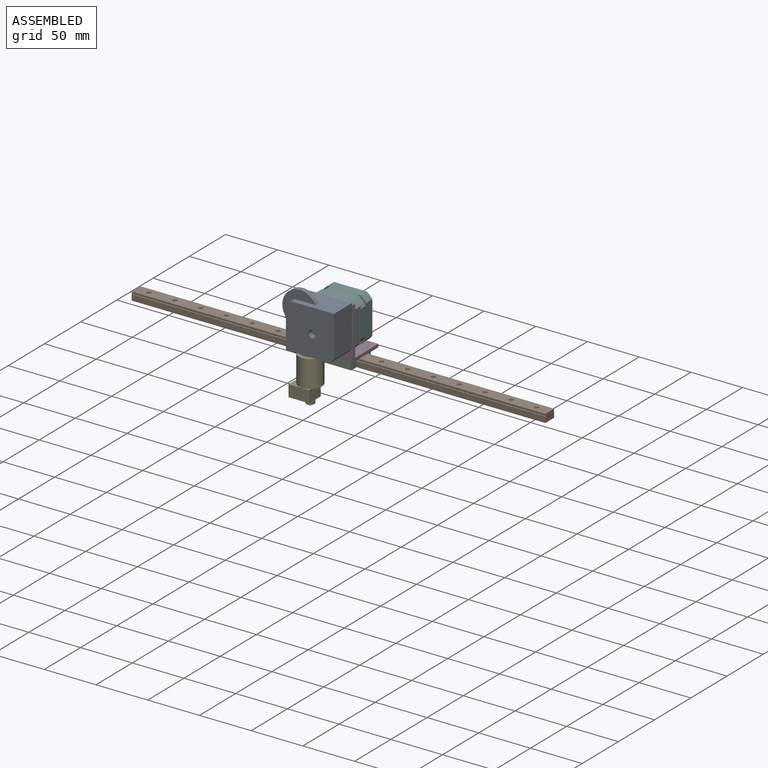
[diagram: assembled view]
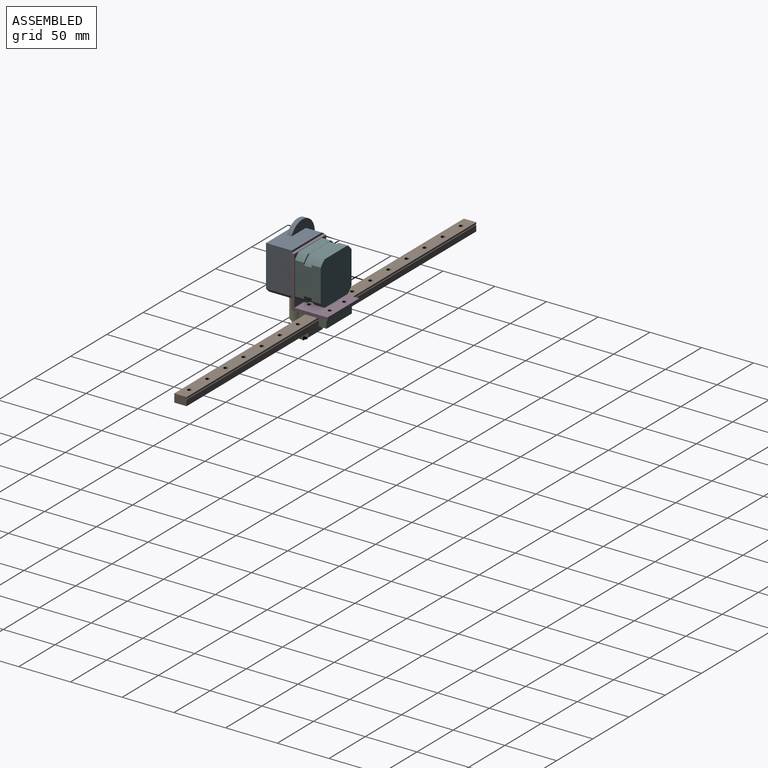
[diagram: assembled view, second angle]
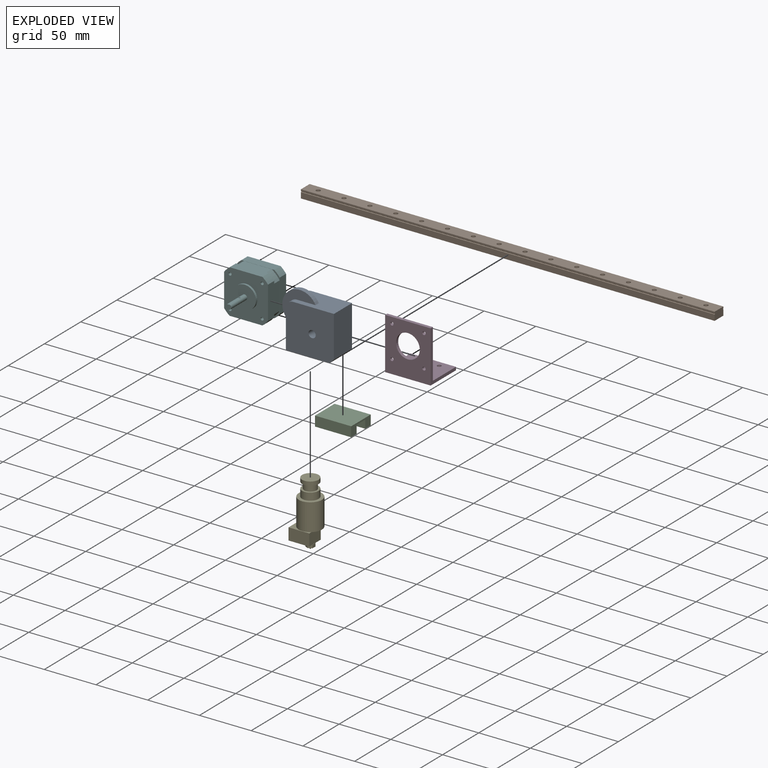
[diagram: exploded view]
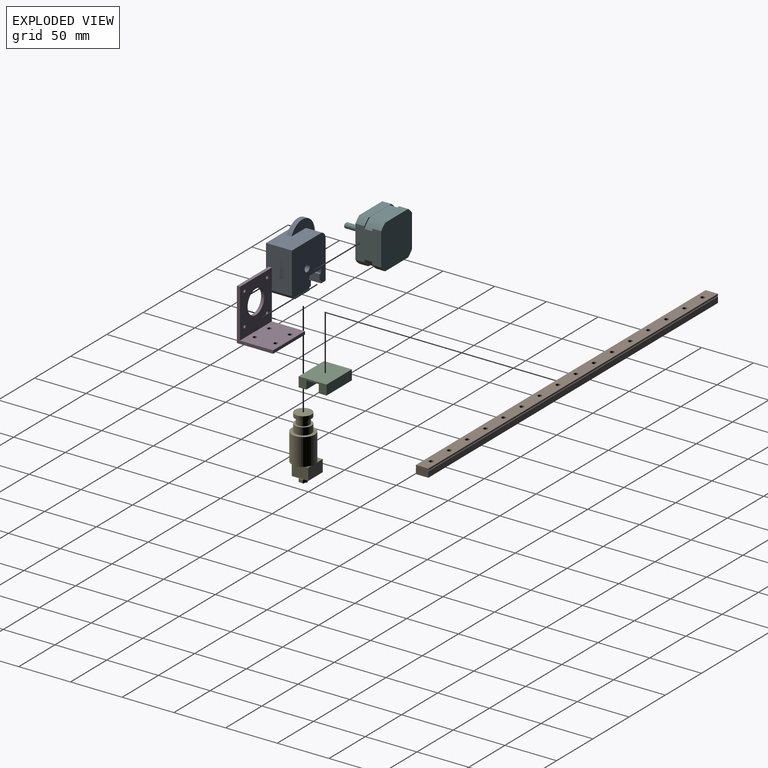
[diagram: exploded view, second angle]
ASSEMBLY  parts=6 mates=5
PART A: 25 faces, bbox 53.5x25x53.3 mm
  f0: plane 11.57x5.9mm, normal (1,0,0), area 68.3mm2, adj f2,f3,f4,f17
  f1: plane 42.5x25mm, normal (0,0,-1), area 776.9mm2, adj f2,f5,f8,f9,f18,f21,f22
  f2: plane 46.5x44mm, normal (0,1,0), area 1808.6mm2, adj f0,f1,f4,f7,f8,f10,f11,f15
  f3: cylinder r=6mm len=12mm, axis (0,0,-1), area 111.2mm2, adj f0,f4,f17,f20
  f4: plane 19.57x16mm, normal (0,0,-1), area 90.2mm2, adj f0,f2,f3,f5,f18,f20,f21
  f5: cylinder r=8mm len=16mm, axis (0,0,-1), area 75.4mm2, adj f1,f4,f18,f21
  f6: cylinder r=7mm len=7mm, axis (0,1,0), area 56.4mm2, adj f7,f8,f9,f14
  f7: plane 39.5x25mm, normal (0,0,1), area 905.9mm2, adj f2,f6,f9,f10,f11,f12,f13,f14
  f8: plane 37x25mm, normal (-1,0,0), area 859.9mm2, adj f1,f2,f6,f9,f11,f12,f13,f14
  f9: plane 46.5x44mm, normal (0,-1,0), area 1989mm2, adj f1,f6,f7,f8,f10,f22,f24
  f10: plane 40x25mm, normal (1,0,0), area 1000mm2, adj f2,f7,f9,f22
  f11: cylinder r=7mm len=15.37mm, axis (0,1,0), area 169mm2, adj f2,f7,f8,f13
  f12: cylinder r=17mm len=32.15mm, axis (0,-1,0), area 276.4mm2, adj f7,f8,f13,f14
  f13: plane 32.15x30.76mm, normal (0,1,0), area 328.5mm2, adj f7,f8,f11,f12
  f14: plane 32.15x30.76mm, normal (0,-1,0), area 328.5mm2, adj f6,f7,f8,f12
  f15: plane 19.67x16.2mm, normal (0,0,-1), area 290.5mm2, adj f2,f16,f19,f23
  f16: cylinder r=8.1mm len=16.2mm, axis (0,0,-1), area 96.7mm2, adj f15,f17,f19,f23
  f17: plane 19.67x16.2mm, normal (0,0,1), area 95.1mm2, adj f0,f2,f3,f16,f19,f20,f23
  f18: plane 11.57x3mm, normal (1,0,0), area 34.7mm2, adj f1,f2,f4,f5
  f19: plane 11.57x3.8mm, normal (1,0,0), area 44mm2, adj f2,f15,f16,f17
  f20: plane 11.57x5.9mm, normal (-1,0,0), area 68.3mm2, adj f2,f3,f4,f17
  f21: plane 11.57x3mm, normal (-1,0,0), area 34.7mm2, adj f1,f2,f4,f5
  f22: plane 25x4mm, normal (0.71,0,-0.71), area 141.4mm2, adj f1,f2,f9,f10
  f23: plane 11.57x3.8mm, normal (-1,0,0), area 44mm2, adj f2,f15,f16,f17
  f24: cylinder r=3.5mm len=25mm, axis (0,-1,0), area 549.8mm2, adj f2,f9
PART B: 28 faces, bbox 12x400x8 mm
  f0: plane 400x12mm, normal (0,0,1), area 4598.9mm2, adj f1,f9,f10,f11,f12,f13,f14,f15
  f1: plane 400x1.5mm, normal (-1,0,0), area 600mm2, adj f0,f2,f10,f11
  f2: plane 400x0.5mm, normal (-0.71,0,-0.71), area 282.8mm2, adj f1,f3,f10,f11
  f3: plane 400x0.5mm, normal (-0.71,0,0.71), area 282.8mm2, adj f2,f4,f10,f11
  f4: plane 400x5.5mm, normal (-1,0,0), area 2200mm2, adj f3,f5,f10,f11
  f5: plane 400x12mm, normal (0,0,-1), area 4598.9mm2, adj f4,f6,f10,f11,f12,f13,f14,f15
  f6: plane 400x5.5mm, normal (1,0,0), area 2200mm2, adj f5,f7,f10,f11
  f7: plane 400x0.5mm, normal (0.71,0,0.71), area 282.8mm2, adj f6,f8,f10,f11
  f8: plane 400x0.5mm, normal (0.71,0,-0.71), area 282.8mm2, adj f7,f9,f10,f11
  f9: plane 400x1.5mm, normal (1,0,0), area 600mm2, adj f0,f8,f10,f11
  f10: plane 12x8mm, normal (0,-1,0), area 95.5mm2, adj f0,f1,f2,f3,f4,f5,f6,f7
  f11: plane 12x8mm, normal (0,1,0), area 95.5mm2, adj f0,f1,f2,f3,f4,f5,f6,f7
  f12: cylinder r=2mm len=8mm, axis (0,0,1), area 100.5mm2, adj f0,f5
  f13: cylinder r=2mm len=8mm, axis (0,0,1), area 100.5mm2, adj f0,f5
  f14: cylinder r=2mm len=8mm, axis (0,0,1), area 100.5mm2, adj f0,f5
  f15: cylinder r=2mm len=8mm, axis (0,0,1), area 100.5mm2, adj f0,f5
  f16: cylinder r=2mm len=8mm, axis (0,0,1), area 100.5mm2, adj f0,f5
  f17: cylinder r=2mm len=8mm, axis (0,0,1), area 100.5mm2, adj f0,f5
  f18: cylinder r=2mm len=8mm, axis (0,0,1), area 100.5mm2, adj f0,f5
  f19: cylinder r=2mm len=8mm, axis (0,0,1), area 100.5mm2, adj f0,f5
  f20: cylinder r=2mm len=8mm, axis (0,0,1), area 100.5mm2, adj f0,f5
  f21: cylinder r=2mm len=8mm, axis (0,0,1), area 100.5mm2, adj f0,f5
  f22: cylinder r=2mm len=8mm, axis (0,0,1), area 100.5mm2, adj f0,f5
  f23: cylinder r=2mm len=8mm, axis (0,0,1), area 100.5mm2, adj f0,f5
  f24: cylinder r=2mm len=8mm, axis (0,0,1), area 100.5mm2, adj f0,f5
  f25: cylinder r=2mm len=8mm, axis (0,0,1), area 100.5mm2, adj f0,f5
  f26: cylinder r=2mm len=8mm, axis (0,0,1), area 100.5mm2, adj f0,f5
  f27: cylinder r=2mm len=8mm, axis (0,0,1), area 100.5mm2, adj f0,f5
PART C: 10 faces, bbox 27x35x9.6 mm
  f0: plane 35x7.5mm, normal (0,0,-1), area 262.5mm2, adj f1,f7,f8,f9
  f1: plane 35x8mm, normal (1,0,0), area 280mm2, adj f0,f2,f8,f9
  f2: plane 35x12mm, normal (0,0,-1), area 420mm2, adj f1,f3,f8,f9
  f3: plane 35x8mm, normal (-1,0,0), area 280mm2, adj f2,f4,f8,f9
  f4: plane 35x7.5mm, normal (0,0,-1), area 262.5mm2, adj f3,f5,f8,f9
  f5: plane 35x9.6mm, normal (1,0,0), area 336mm2, adj f4,f6,f8,f9
  f6: plane 35x27mm, normal (0,0,1), area 945mm2, adj f5,f7,f8,f9
  f7: plane 35x9.6mm, normal (-1,0,0), area 336mm2, adj f0,f6,f8,f9
  f8: plane 27x9.6mm, normal (0,-1,0), area 163.2mm2, adj f0,f1,f2,f3,f4,f5,f6,f7
  f9: plane 27x9.6mm, normal (0,1,0), area 163.2mm2, adj f0,f1,f2,f3,f4,f5,f6,f7
PART D: 17 faces, bbox 44x35x50 mm
  f0: plane 50x35mm, normal (-1,0,0), area 246mm2, adj f1,f3,f4,f5,f10,f12
  f1: plane 44x35mm, normal (0,0,-1), area 1494.6mm2, adj f0,f2,f4,f5,f13,f14,f15,f16
  f2: plane 50x35mm, normal (1,0,0), area 246mm2, adj f1,f3,f4,f5,f10,f12
  f3: plane 44x32mm, normal (0,0,1), area 1362.6mm2, adj f0,f2,f4,f12,f13,f14,f15,f16
  f4: plane 44x3mm, normal (0,-1,0), area 132mm2, adj f0,f1,f2,f3
  f5: plane 50x44mm, normal (0,1,0), area 1752.4mm2, adj f0,f1,f2,f6,f7,f8,f9,f10
  f6: cylinder r=1.6mm len=3.2mm, axis (0,1,0), area 30.2mm2, adj f5,f12
  f7: cylinder r=1.6mm len=3.2mm, axis (0,1,0), area 30.2mm2, adj f5,f12
  f8: cylinder r=1.6mm len=3.2mm, axis (0,1,0), area 30.2mm2, adj f5,f12
  f9: cylinder r=1.6mm len=3.2mm, axis (0,1,0), area 30.2mm2, adj f5,f12
  f10: plane 44x3mm, normal (0,0,1), area 132mm2, adj f0,f2,f5,f12
  f11: cylinder r=11.5mm len=23mm, axis (0,1,0), area 216.8mm2, adj f5,f12
  f12: plane 47x44mm, normal (0,-1,0), area 1620.4mm2, adj f0,f2,f3,f6,f7,f8,f9,f10
  f13: cylinder r=1.9mm len=3.8mm, axis (0,0,1), area 35.8mm2, adj f1,f3
  f14: cylinder r=1.9mm len=3.8mm, axis (0,0,1), area 35.8mm2, adj f1,f3
  f15: cylinder r=1.9mm len=3.8mm, axis (0,0,1), area 35.8mm2, adj f1,f3
  f16: cylinder r=1.9mm len=3.8mm, axis (0,0,1), area 35.8mm2, adj f1,f3
PART E: 27 faces, bbox 26.7x22.3x62.3 mm
  f0: plane 22.3x22.3mm, normal (0,0,1), area 189.5mm2, adj f1,f10
  f1: cylinder r=11.15mm len=26mm, axis (0,0,-1), area 1821.5mm2, adj f0,f4
  f2: plane 20x16mm, normal (0,0,1), area 313.8mm2, adj f3,f11,f12,f13,f14
  f3: cylinder r=1.4mm len=2.8mm, axis (0,0,-1), area 18.5mm2, adj f2,f4
  f4: plane 22.3x22.3mm, normal (0,0,-1), area 384.4mm2, adj f1,f3
  f5: plane 16x16mm, normal (0,0,1), area 201.1mm2, adj f6
  f6: cylinder r=8mm len=16mm, axis (0,0,-1), area 186mm2, adj f5,f7
  f7: plane 16x16mm, normal (0,0,-1), area 88mm2, adj f6,f8
  f8: cylinder r=6mm len=12mm, axis (0,0,-1), area 226.2mm2, adj f7,f9
  f9: plane 16x16mm, normal (0,0,1), area 88mm2, adj f8,f10
  f10: cylinder r=8mm len=16mm, axis (0,0,-1), area 351.9mm2, adj f0,f9
  f11: plane 20x11.5mm, normal (0,-1,0), area 230mm2, adj f2,f12,f14,f26
  f12: plane 16x11.5mm, normal (1,0,0), area 184mm2, adj f2,f11,f13,f26
  f13: plane 20x11.5mm, normal (0,1,0), area 230mm2, adj f2,f12,f14,f26
  f14: plane 16x11.5mm, normal (-1,0,0), area 184mm2, adj f2,f11,f13,f26
  f15: plane 1x1mm, normal (0,0,-1), area 0.8mm2, adj f16
  f16: cone r=1.9mm half-angle=35deg, axis (0,0,1), area 18.4mm2, adj f15,f17
  f17: plane 8.08x7mm, normal (0,0,-1), area 31.1mm2, adj f16,f18,f19,f20,f21,f22,f23
  f18: plane 3.5x3mm, normal (-0.5,0.87,0), area 12.1mm2, adj f17,f19,f23,f24
  f19: plane 3.5x3mm, normal (0.5,0.87,0), area 12.1mm2, adj f17,f18,f20,f24
  f20: plane 4.04x3mm, normal (1,0,0), area 12.1mm2, adj f17,f19,f21,f24
  f21: plane 3.5x3mm, normal (0.5,-0.87,0), area 12.1mm2, adj f17,f20,f22,f24
  f22: plane 3.5x3mm, normal (-0.5,-0.87,0), area 12.1mm2, adj f17,f21,f23,f24
  f23: plane 4.04x3mm, normal (-1,0,0), area 12.1mm2, adj f17,f18,f22,f24
  f24: plane 8.08x7mm, normal (0,0,1), area 22.8mm2, adj f18,f19,f20,f21,f22,f23,f25
  f25: cylinder r=2.5mm len=5mm, axis (0,0,-1), area 15.7mm2, adj f24,f26
  f26: plane 20x16mm, normal (0,0,-1), area 300.4mm2, adj f11,f12,f13,f14,f25
PART F: 50 faces, bbox 42.4x42.4x49 mm
  f0: cylinder r=1.5mm len=6mm, axis (0,0,1), area 56.5mm2, adj f20,f28
  f1: cylinder r=1.25mm len=2.5mm, axis (0,0,1), area 11.8mm2, adj f2,f28
  f2: cone r=1.25mm half-angle=59deg, axis (0,0,1), area 5.7mm2, adj f1
  f3: cylinder r=1.5mm len=6mm, axis (0,0,1), area 56.5mm2, adj f20,f27
  f4: cylinder r=1.25mm len=2.5mm, axis (0,0,1), area 11.8mm2, adj f5,f27
  f5: cone r=1.25mm half-angle=59deg, axis (0,0,1), area 5.7mm2, adj f4
  f6: cylinder r=1.5mm len=6mm, axis (0,0,1), area 56.5mm2, adj f20,f26
  f7: cylinder r=1.25mm len=2.5mm, axis (0,0,1), area 11.8mm2, adj f8,f26
  f8: cone r=1.25mm half-angle=59deg, axis (0,0,1), area 5.7mm2, adj f7
  f9: cylinder r=1.5mm len=6mm, axis (0,0,1), area 56.5mm2, adj f20,f25
  f10: cylinder r=1.25mm len=2.5mm, axis (0,0,1), area 11.8mm2, adj f11,f25
  f11: cone r=1.25mm half-angle=59deg, axis (0,0,1), area 5.7mm2, adj f10
  f12: cylinder r=11mm len=22mm, axis (0,0,-1), area 138.2mm2, adj f15,f20
  f13: cylinder r=2.5mm len=22mm, axis (0,0,-1), area 297.3mm2, adj f14,f15,f29,f30
  f14: plane 5x4.5mm, normal (0,0,1), area 18.6mm2, adj f13,f29
  f15: plane 22x22mm, normal (0,0,1), area 360.5mm2, adj f12,f13
  f16: plane 31.78x8.75mm, normal (1,0,0), area 278mm2, adj f20,f21,f22,f32
  f17: plane 31.78x8.75mm, normal (0,-1,0), area 278mm2, adj f20,f21,f23,f32
  f18: plane 31.78x8.75mm, normal (-1,0,0), area 278mm2, adj f20,f23,f24,f32
  f19: plane 31.78x8.75mm, normal (0,1,0), area 278mm2, adj f20,f22,f24,f32
  f20: plane 42.42x42.42mm, normal (0,0,1), area 1339.6mm2, adj f0,f3,f6,f9,f12,f16,f17,f18
  f21: cylinder r=26.5mm len=8.75mm, axis (0,0,-1), area 66.1mm2, adj f16,f17,f20,f32
  f22: cylinder r=26.5mm len=8.75mm, axis (0,0,-1), area 66.1mm2, adj f16,f19,f20,f32
  f23: cylinder r=26.5mm len=8.75mm, axis (0,0,-1), area 66.1mm2, adj f17,f18,f20,f32
  f24: cylinder r=26.5mm len=8.75mm, axis (0,0,-1), area 66.1mm2, adj f18,f19,f20,f32
  f25: plane 3x3mm, normal (0,0,1), area 2.2mm2, adj f9,f10
  f26: plane 3x3mm, normal (0,0,1), area 2.2mm2, adj f6,f7
  f27: plane 3x3mm, normal (0,0,1), area 2.2mm2, adj f3,f4
  f28: plane 3x3mm, normal (0,0,1), area 2.2mm2, adj f0,f1
  f29: plane 15x3mm, normal (0,1,0), area 45mm2, adj f13,f14,f30
  f30: plane 3x0.5mm, normal (0,0,1), area 1mm2, adj f13,f29
  f31: plane 42.42x42.42mm, normal (0,0,1), area 67.2mm2, adj f33,f34,f35,f36,f37,f38,f39,f40
  f32: plane 42.42x42.42mm, normal (0,0,-1), area 67.2mm2, adj f16,f17,f18,f19,f21,f22,f23,f24
  f33: cylinder r=25mm len=7.71mm, axis (0,0,1), area 82.5mm2, adj f31,f32,f34,f40
  f34: plane 26.79x7.5mm, normal (0,1,0), area 200.9mm2, adj f31,f32,f33,f35
  f35: cylinder r=25mm len=7.71mm, axis (0,0,1), area 82.5mm2, adj f31,f32,f34,f36
  f36: plane 26.79x7.5mm, normal (1,0,0), area 200.9mm2, adj f31,f32,f35,f37
  f37: cylinder r=25mm len=7.71mm, axis (0,0,1), area 82.5mm2, adj f31,f32,f36,f38
  f38: plane 26.79x7.5mm, normal (0,-1,0), area 200.9mm2, adj f31,f32,f37,f39
  f39: cylinder r=25mm len=7.71mm, axis (0,0,1), area 82.5mm2, adj f31,f32,f38,f40
  f40: plane 26.79x7.5mm, normal (-1,0,0), area 200.9mm2, adj f31,f32,f33,f39
  f41: plane 42.42x42.42mm, normal (0,0,-1), area 1748.1mm2, adj f42,f43,f44,f45,f46,f47,f48,f49
  f42: cylinder r=26.5mm len=8.75mm, axis (0,0,-1), area 66.1mm2, adj f31,f41,f48,f49
  f43: cylinder r=26.5mm len=8.75mm, axis (0,0,-1), area 66.1mm2, adj f31,f41,f47,f48
  f44: cylinder r=26.5mm len=8.75mm, axis (0,0,-1), area 66.1mm2, adj f31,f41,f46,f47
  f45: cylinder r=26.5mm len=8.75mm, axis (0,0,-1), area 66.1mm2, adj f31,f41,f46,f49
  f46: plane 31.78x8.75mm, normal (0,1,0), area 278mm2, adj f31,f41,f44,f45
  f47: plane 31.78x8.75mm, normal (-1,0,0), area 278mm2, adj f31,f41,f43,f44
  f48: plane 31.78x8.75mm, normal (0,-1,0), area 278mm2, adj f31,f41,f42,f43
  f49: plane 31.78x8.75mm, normal (1,0,0), area 278mm2, adj f31,f41,f42,f45
PLACE A t=(50.45,-304.67,24.19)mm
PLACE B rot(axis=(0,0,-1),90deg) t=(261.55,-275.64,6.79)mm
PLACE C rot(axis=(0,0,-1),90deg) t=(479.05,-275.64,6.79)mm
PLACE D rot(axis=(0,0,1),180deg) t=(61.55,-293.1,16.39)mm
PLACE E t=(50.45,-304.67,15.54)mm
PLACE F rot(axis=(1,0,0),90deg) t=(61.55,-290.1,114.89)mm
MATE fastened F.f12 <-> D.f11  axis (0,-1,0) through (61.55,-290.1,44.89)mm
MATE fastened E.f16 <-> A.f3  axis (0,0,1) through (50.45,-304.67,36.89)mm
MATE fastened A.f24 <-> D.f11  axis (0,1,0) through (61.55,-293.1,44.89)mm
MATE fastened D.f1 <-> C.f6  axis (0,0,-1) through (61.55,-275.64,16.39)mm
MATE fastened C.f3 <-> B.f9  axis (0,1,0) through (61.55,-281.64,14.79)mm
